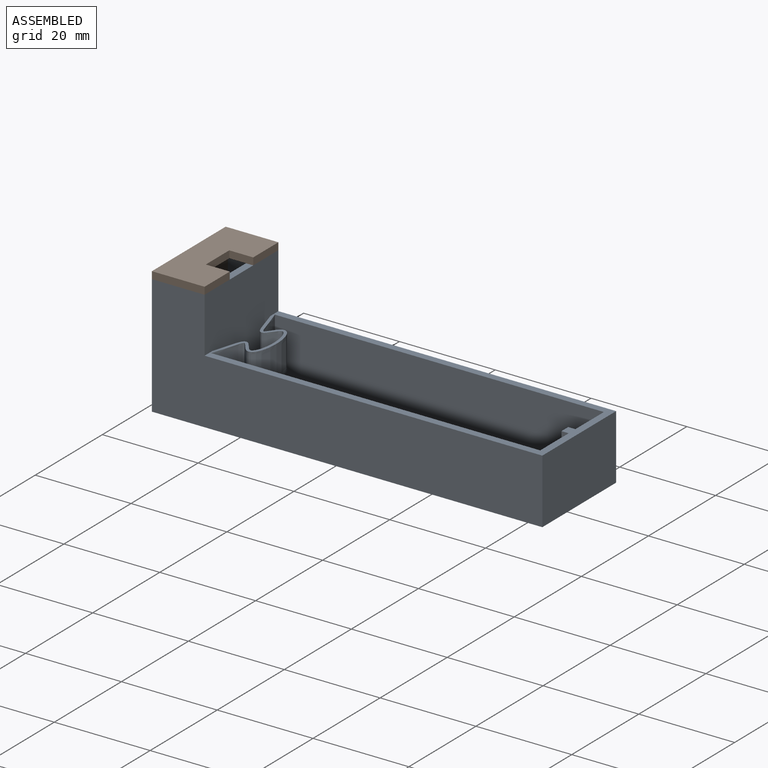
[diagram: assembled view]
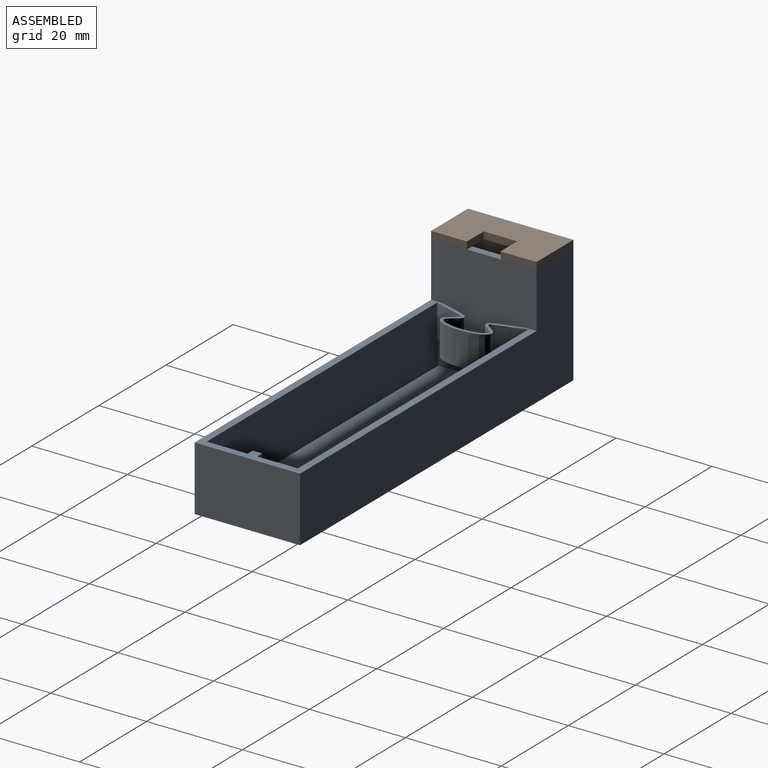
[diagram: assembled view, second angle]
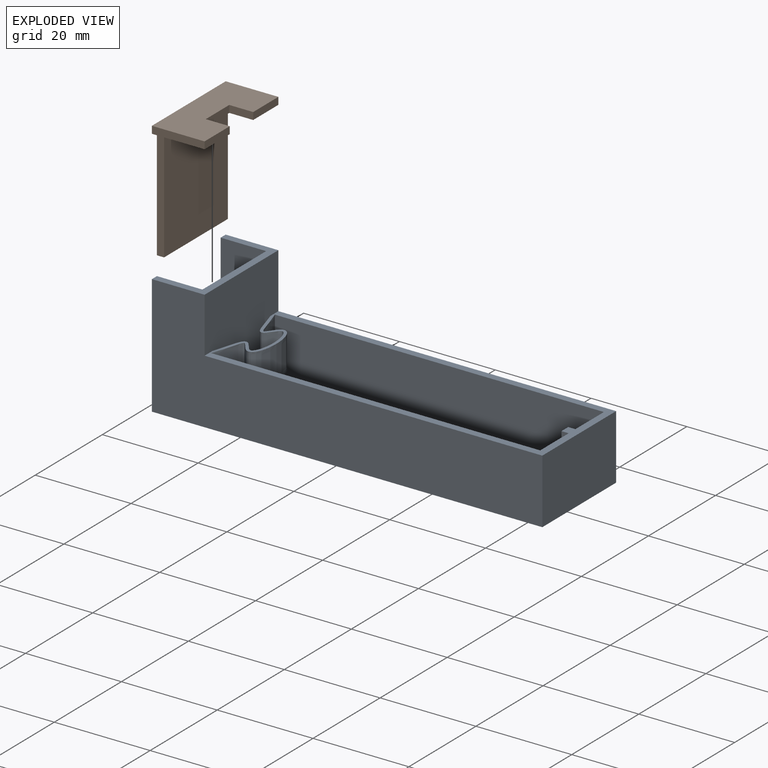
[diagram: exploded view]
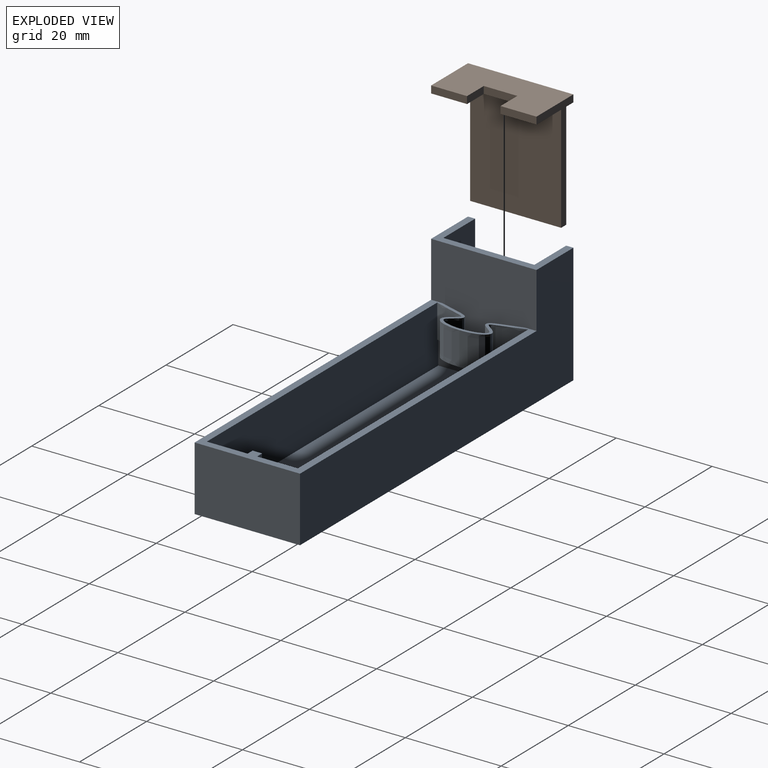
[diagram: exploded view, second angle]
ASSEMBLY  parts=2 mates=3
PART A: 35 faces, bbox 81.5x22x25 mm
  f0: plane 69x12mm, normal (0,1,0), area 825.7mm2, adj f1,f3,f7,f16,f30,f34
  f1: plane 23.5x22mm, normal (1,0,0), area 457.1mm2, adj f0,f2,f3,f8,f13,f16,f18,f19
  f2: plane 69x12mm, normal (0,-1,0), area 825.7mm2, adj f1,f3,f7,f16,f31,f34
  f3: plane 70.51x22mm, normal (0,0,1), area 263mm2, adj f0,f1,f2,f4,f5,f6,f7,f8
  f4: plane 12x1.5mm, normal (0,1,0), area 15.2mm2, adj f3,f5,f7,f16,f27,f28,f29
  f5: plane 12x2mm, normal (-1,0,0), area 24mm2, adj f3,f4,f6,f16
  f6: plane 12x1.5mm, normal (0,-1,0), area 15.2mm2, adj f3,f5,f7,f16,f27,f28,f29
  f7: plane 19x12mm, normal (-1,0,0), area 212mm2, adj f0,f2,f3,f4,f6,f16,f27,f28
  f8: plane 81.5x25mm, normal (0,1,0), area 1226.7mm2, adj f1,f3,f9,f14,f15,f18
  f9: plane 25x22mm, normal (-1,0,0), area 103.5mm2, adj f8,f10,f12,f13,f15,f17,f18
  f10: plane 23.5x9.5mm, normal (0,-1,0), area 223.2mm2, adj f9,f11,f17,f18
  f11: plane 23.5x19mm, normal (-1,0,0), area 434.5mm2, adj f10,f12,f17,f18,f19,f20,f21,f22
  f12: plane 23.5x9.5mm, normal (0,1,0), area 223.2mm2, adj f9,f11,f17,f18
  f13: plane 81.5x25mm, normal (0,-1,0), area 1226.7mm2, adj f1,f3,f9,f14,f15,f18
  f14: plane 22x13.5mm, normal (1,0,0), area 297mm2, adj f3,f8,f13,f15
  f15: plane 81.5x22mm, normal (0,0,-1), area 1793mm2, adj f8,f9,f13,f14
  f16: plane 69x19mm, normal (0,0,1), area 1308mm2, adj f0,f1,f2,f4,f5,f6,f7
  f17: plane 19x9.5mm, normal (0,0,1), area 180.5mm2, adj f9,f10,f11,f12
  f18: plane 22x11mm, normal (0,0,1), area 61.5mm2, adj f1,f8,f9,f10,f11,f12,f13
  f19: plane 2x1.5mm, normal (0,-1,0), area 3mm2, adj f1,f11,f20,f22
  f20: plane 3x1.5mm, normal (0,0,1), area 4.5mm2, adj f1,f11,f19,f21
  f21: plane 2x1.5mm, normal (0,1,0), area 3mm2, adj f1,f11,f20,f22
  f22: plane 3x1.5mm, normal (0,0,-1), area 4.5mm2, adj f1,f11,f19,f21
  f23: plane 2x1.5mm, normal (0,-1,0), area 3mm2, adj f1,f11,f24,f26
  f24: plane 3x1.5mm, normal (0,0,1), area 4.5mm2, adj f1,f11,f23,f25
  f25: plane 2x1.5mm, normal (0,1,0), area 3mm2, adj f1,f11,f24,f26
  f26: plane 3x1.5mm, normal (0,0,-1), area 4.5mm2, adj f1,f11,f23,f25
  f27: plane 2x0.7mm, normal (0,0,-1), area 1.4mm2, adj f4,f6,f7,f29
  f28: plane 2x0.7mm, normal (0,0,1), area 1.4mm2, adj f4,f6,f7,f29
  f29: plane 4x2mm, normal (1,0,0), area 8mm2, adj f4,f6,f27,f28
  f30: extruded ~9.5x7mm, area 117.4mm2, adj f0,f3,f31,f34
  f31: extruded ~9.5x7mm, area 117.4mm2, adj f2,f3,f30,f34
  f32: extruded ~8.65x7mm, area 112.2mm2, adj f1,f3,f33,f34
  f33: extruded ~8.65x7mm, area 112.2mm2, adj f1,f3,f32,f34
  f34: plane 19.01x7.31mm, normal (0,0,-1), area 20mm2, adj f0,f1,f2,f30,f31,f32,f33
PART B: 14 faces, bbox 22x11x25 mm
  f0: plane 7.5x1.5mm, normal (0,1,0), area 11.2mm2, adj f1,f3,f6,f11
  f1: plane 22x11mm, normal (0,0,1), area 178.5mm2, adj f0,f2,f3,f4,f5,f7,f8,f9
  f2: plane 7.5x1.5mm, normal (0,1,0), area 11.2mm2, adj f1,f5,f6,f12
  f3: plane 11x1.5mm, normal (-1,0,0), area 16.5mm2, adj f0,f1,f4,f6
  f4: plane 25x22mm, normal (0,-1,0), area 479.5mm2, adj f1,f3,f5,f6,f7,f9,f10
  f5: plane 11x1.5mm, normal (1,0,0), area 16.5mm2, adj f1,f2,f4,f6
  f6: plane 22x11mm, normal (0,0,-1), area 207mm2, adj f0,f2,f3,f4,f5,f11,f12,f13
  f7: plane 23.5x1.5mm, normal (1,0,0), area 35.2mm2, adj f1,f4,f8,f10
  f8: plane 23.5x19mm, normal (0,1,0), area 446.5mm2, adj f1,f7,f9,f10
  f9: plane 23.5x1.5mm, normal (-1,0,0), area 35.2mm2, adj f1,f4,f8,f10
  f10: plane 19x1.5mm, normal (0,0,1), area 28.5mm2, adj f4,f7,f8,f9
  f11: plane 5x1.5mm, normal (1,0,0), area 7.5mm2, adj f0,f1,f6,f13
  f12: plane 5x1.5mm, normal (-1,0,0), area 7.5mm2, adj f1,f2,f6,f13
  f13: plane 7x1.5mm, normal (0,1,0), area 10.5mm2, adj f1,f6,f11,f12
PLACE A t=(26.14,-29.94,20.14)mm
PLACE B rot(axis=(0.71,0.71,0),180deg) t=(-121.98,30.95,46.64)mm
MATE planar B.f1 <-> A.f18  axis (0,0,-1) through (-98.22,-11.73,45.14)mm
MATE planar B.f9 <-> A.f12  axis (0,-1,0) through (-98.97,-21.23,33.39)mm
MATE planar B.f4 <-> A.f9  axis (-1,0,0) through (-99.72,-11.73,34.25)mm
